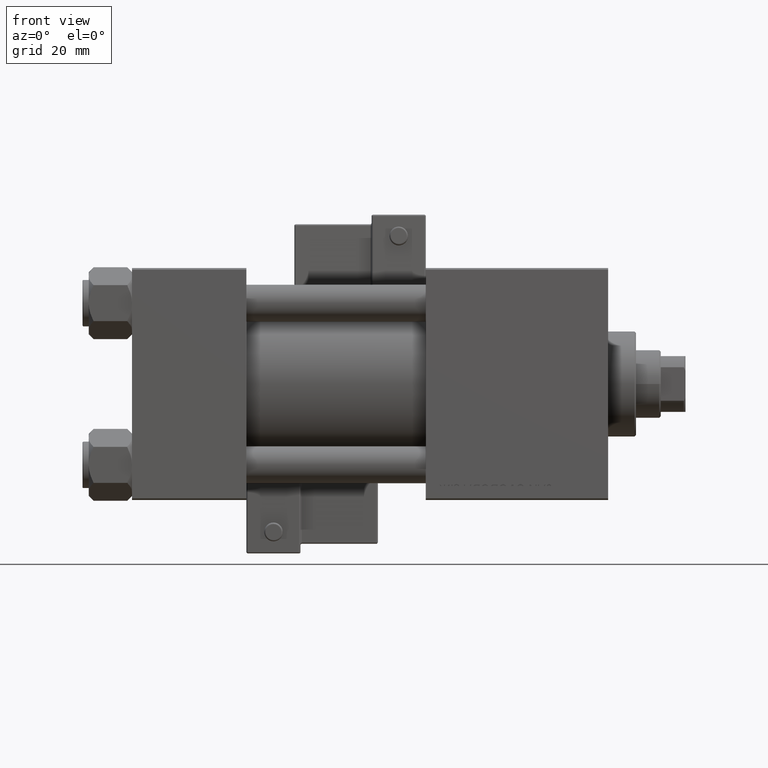
[diagram: clean part render]
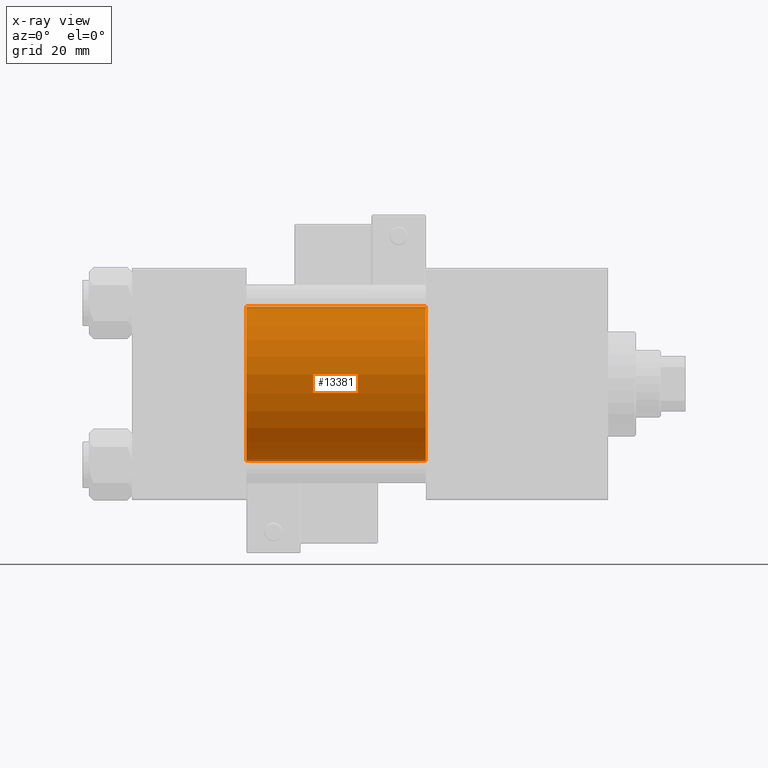
[diagram: x-ray — body ghosted, one internal face saturated and labeled with its STEP entity id]
A machine part, front view, then the same camera in x-ray: the body is ghosted and one INTERNAL B-rep face — a face not visible from any outside direction — is saturated and labeled: STEP entity #13381.
In plain terms, the highlighted cylindrical surface (partial cylindrical patch) has radius 25 mm, axis along (-1, -0, -0).
Its self-contained STEP definition (entity closure, byte-faithful):
#98 = FACE_OUTER_BOUND ( 'NONE', #32524, .T. ) ;
#1132 = DIRECTION ( 'NONE',  ( 0.000000000000000000, 0.000000000000000000, 1.000000000000000000 ) ) ;
#5512 = AXIS2_PLACEMENT_3D ( 'NONE', #47700, #6266, #6531 ) ;
#6266 = DIRECTION ( 'NONE',  ( 1.000000000000000000, 0.000000000000000000, 0.000000000000000000 ) ) ;
#6531 = DIRECTION ( 'NONE',  ( 0.000000000000000000, 0.000000000000000000, -1.000000000000000000 ) ) ;
#7553 = DIRECTION ( 'NONE',  ( -1.000000000000000000, -0.000000000000000000, -0.000000000000000000 ) ) ;
#9743 = CIRCLE ( 'NONE', #25891, 25.00000000000000000 ) ;
#13150 = VERTEX_POINT ( 'NONE', #46086 ) ;
#13381 = ADVANCED_FACE ( 'NONE', ( #98 ), #36792, .F. ) ;
#14765 = EDGE_CURVE ( 'NONE', #13150, #36998, #9743, .T. ) ;
#15882 = VECTOR ( 'NONE', #49948, 1000.000000000000000 ) ;
#20334 = CARTESIAN_POINT ( 'NONE',  ( 95.00000000000000000, -2.602085213965210642E-15, 0.000000000000000000 ) ) ;
#21214 = EDGE_CURVE ( 'NONE', #26259, #45104, #45427, .T. ) ;
#25891 = AXIS2_PLACEMENT_3D ( 'NONE', #20334, #36557, #47949 ) ;
#26066 = ORIENTED_EDGE ( 'NONE', *, *, #39187, .T. ) ;
#26137 = EDGE_CURVE ( 'NONE', #13150, #26259, #34028, .T. ) ;
#26259 = VERTEX_POINT ( 'NONE', #33762 ) ;
#30102 = ORIENTED_EDGE ( 'NONE', *, *, #26137, .F. ) ;
#30749 = ORIENTED_EDGE ( 'NONE', *, *, #14765, .T. ) ;
#32524 = EDGE_LOOP ( 'NONE', ( #30749, #26066, #49137, #30102 ) ) ;
#32539 = CARTESIAN_POINT ( 'NONE',  ( 95.00000000000000000, -2.602085213965210642E-15, 0.000000000000000000 ) ) ;
#33762 = CARTESIAN_POINT ( 'NONE',  ( 37.00000000000000000, -2.602085213965210642E-15, 25.00000000000000000 ) ) ;
#33910 = LINE ( 'NONE', #44247, #50186 ) ;
#34028 = LINE ( 'NONE', #45697, #15882 ) ;
#36557 = DIRECTION ( 'NONE',  ( 1.000000000000000000, 0.000000000000000000, 0.000000000000000000 ) ) ;
#36792 = CYLINDRICAL_SURFACE ( 'NONE', #44533, 25.00000000000000000 ) ;
#36998 = VERTEX_POINT ( 'NONE', #43955 ) ;
#39187 = EDGE_CURVE ( 'NONE', #36998, #45104, #33910, .T. ) ;
#43085 = CARTESIAN_POINT ( 'NONE',  ( 37.00000000000000000, 4.595317839031718093E-16, -25.00000000000000000 ) ) ;
#43955 = CARTESIAN_POINT ( 'NONE',  ( 95.00000000000000000, 4.595317839031718093E-16, -25.00000000000000000 ) ) ;
#44247 = CARTESIAN_POINT ( 'NONE',  ( 95.00000000000000000, 4.595317839031718093E-16, -25.00000000000000000 ) ) ;
#44533 = AXIS2_PLACEMENT_3D ( 'NONE', #32539, #48719, #1132 ) ;
#45104 = VERTEX_POINT ( 'NONE', #43085 ) ;
#45427 = CIRCLE ( 'NONE', #5512, 25.00000000000000000 ) ;
#45697 = CARTESIAN_POINT ( 'NONE',  ( 95.00000000000000000, -2.602085213965210642E-15, 25.00000000000000000 ) ) ;
#46086 = CARTESIAN_POINT ( 'NONE',  ( 95.00000000000000000, -2.602085213965210642E-15, 25.00000000000000000 ) ) ;
#47700 = CARTESIAN_POINT ( 'NONE',  ( 37.00000000000000000, -2.602085213965210642E-15, 0.000000000000000000 ) ) ;
#47949 = DIRECTION ( 'NONE',  ( 0.000000000000000000, 0.000000000000000000, -1.000000000000000000 ) ) ;
#48719 = DIRECTION ( 'NONE',  ( -1.000000000000000000, -0.000000000000000000, -0.000000000000000000 ) ) ;
#49137 = ORIENTED_EDGE ( 'NONE', *, *, #21214, .F. ) ;
#49948 = DIRECTION ( 'NONE',  ( -1.000000000000000000, -0.000000000000000000, -0.000000000000000000 ) ) ;
#50186 = VECTOR ( 'NONE', #7553, 1000.000000000000000 ) ;